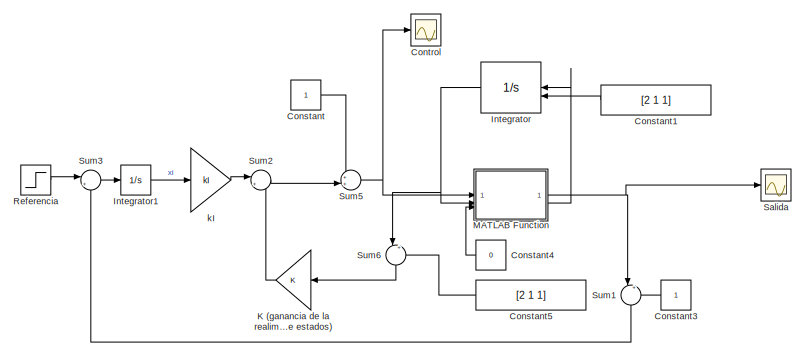
[diagram: root canvas - part 1/2, right side, full height]
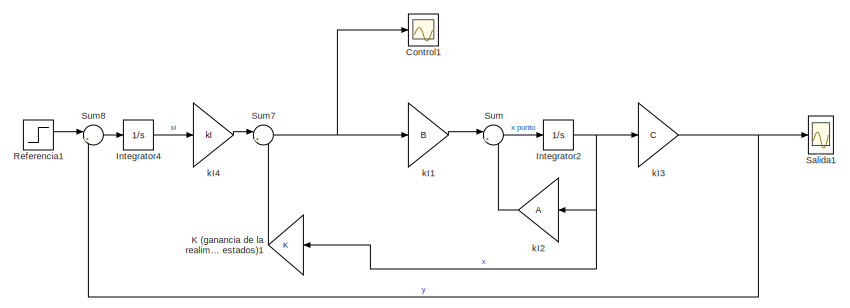
[diagram: root canvas - part 2/2, left side, full height]
MODEL slx_7f7febc3861d
KIND model
CONFIG AbsTol = auto
CONFIG EnableMultiTasking = off
CONFIG FixedStep = auto
CONFIG MaxStep = auto
CONFIG MinStep = auto
CONFIG RelTol = 1e-3
CONFIG SampleTimeConstraint = Unconstrained
CONFIG SolverName = VariableStepAuto
CONFIG StartTime = 0.0
CONFIG StopTime = 1000
BLOCK [Constant] Constant
BLOCK [Constant] Constant1
  Value = [2 1 1]
BLOCK [Constant] Constant3
BLOCK [Constant] Constant4
  Value = 0
BLOCK [Constant] Constant5
  Value = [2 1 1]
BLOCK [Scope] Control
  Floating = off
  NumInputPorts = 1
  ScopeSpecificationString = Simulink.scopes.TimeScopeBlockCfg('CurrentConfiguration', extmgr.ConfigurationSet(extmgr.Configuration('Core','General UI',true),extmgr.Configuration('Core','Source UI',true),extmgr.Configuration('Sources','WiredSimulink',true,'DataLoggingVariableName','ScopeData1'),extmgr.Configuration('Visuals','Time Domain',true,'SerializedDisplays',{struct('MinYLimReal','-11000857495849395001214071558375581238...<+3274ch>
BLOCK [Scope] Control1
  Floating = off
  NumInputPorts = 1
  ScopeSpecificationString = Simulink.scopes.TimeScopeBlockCfg('CurrentConfiguration', extmgr.ConfigurationSet(extmgr.Configuration('Core','General UI',true),extmgr.Configuration('Core','Source UI',true),extmgr.Configuration('Sources','WiredSimulink',true,'DataLoggingVariableName','ScopeData2'),extmgr.Configuration('Visuals','Time Domain',true,'SerializedDisplays',{struct('MinYLimReal','-0.00621','MaxYLimReal','0.05593','YLab...<+1452ch>
BLOCK [Integrator] Integrator
  InitialConditionSource = external
BLOCK [Integrator] Integrator1
BLOCK [Integrator] Integrator2
BLOCK [Integrator] Integrator4
BLOCK [Gain] K (ganancia de la realimentacion de estados)
  Gain = K
  Multiplication = Matrix(K*u)
BLOCK [Gain] K (ganancia de la realimentacion de estados)1
  Gain = K
  Multiplication = Matrix(K*u)
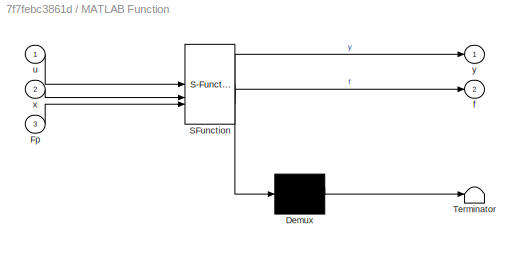
BLOCK [SubSystem] MATLAB Function
  ErrorFcn = Stateflow.Translate.translate
  PermitHierarchicalResolution = ExplicitOnly
  SFBlockType = MATLAB Function
  TreatAsAtomicUnit = on
BLOCK [Demux] MATLAB Function/ Demux 
  Outputs = 1
BLOCK [S-Function] MATLAB Function/ SFunction 
  EnableBusSupport = on
  FunctionName = sf_sfun
  PortCounts = [3 3]
  SFcnIsStateOwnerBlock = off
  SFunctionDeploymentMode = off
  Tag = Stateflow S-Function 2
BLOCK [Terminator] MATLAB Function/ Terminator 
BLOCK [Inport] MATLAB Function/Fp
  Port = 3
BLOCK [Outport] MATLAB Function/f
  Port = 2
BLOCK [Inport] MATLAB Function/u
BLOCK [Inport] MATLAB Function/x
  Port = 2
BLOCK [Outport] MATLAB Function/y
BLOCK [Step] Referencia
  After = 0.1
  SampleTime = 0
BLOCK [Step] Referencia1
  After = 0.1
  SampleTime = 0
BLOCK [Scope] Salida
  Floating = off
  NumInputPorts = 1
  ScopeSpecificationString = Simulink.scopes.TimeScopeBlockCfg('CurrentConfiguration', extmgr.ConfigurationSet(extmgr.Configuration('Core','General UI',true),extmgr.Configuration('Core','Source UI',true),extmgr.Configuration('Sources','WiredSimulink',true),extmgr.Configuration('Visuals','Time Domain',true,'SerializedDisplays',{struct('MinYLimReal','-1413874952895.22632','MaxYLimReal','12724874576057.08203','YLabelReal','','Mi...<+1557ch>
BLOCK [Scope] Salida1
  Floating = off
  NumInputPorts = 1
  ScopeSpecificationString = Simulink.scopes.TimeScopeBlockCfg('CurrentConfiguration', extmgr.ConfigurationSet(extmgr.Configuration('Core','General UI',true),extmgr.Configuration('Core','Source UI',true),extmgr.Configuration('Sources','WiredSimulink',true,'DataLoggingVariableName','ScopeData3'),extmgr.Configuration('Visuals','Time Domain',true,'SerializedDisplays',{struct('MinYLimReal','-0.01237','MaxYLimReal','0.11132','YLab...<+1482ch>
BLOCK [Sum] Sum
  Inputs = |++
BLOCK [Sum] Sum1
  Inputs = |+-
  NameLocation = left
BLOCK [Sum] Sum2
  Inputs = |+-
BLOCK [Sum] Sum3
  Inputs = |+-
BLOCK [Sum] Sum5
  Inputs = ++|
BLOCK [Sum] Sum6
  Inputs = |+-
  NameLocation = left
BLOCK [Sum] Sum7
  Inputs = |+-
BLOCK [Sum] Sum8
  Inputs = |+-
BLOCK [Gain] kI
  Gain = kI
  Multiplication = Matrix(K*u)
BLOCK [Gain] kI1
  Gain = B
  Multiplication = Matrix(K*u)
BLOCK [Gain] kI2
  Gain = A
  Multiplication = Matrix(K*u)
BLOCK [Gain] kI3
  Gain = C
  Multiplication = Matrix(K*u)
BLOCK [Gain] kI4
  Gain = kI
  Multiplication = Matrix(K*u)
LINE Constant1:1 -> Integrator:2
LINE Constant3:1 -> Sum1:2
LINE Constant4:1 -> MATLAB Function:3
LINE Constant5:1 -> Sum6:2
LINE Constant:1 -> Sum5:1
LINE Integrator1:1 -> kI:1
NET Integrator2:1 -> K (ganancia de la realimentacion de estados)1:1, kI2:1, kI3:1
LINE Integrator4:1 -> kI4:1
NET Integrator:1 -> MATLAB Function:2, Sum6:1
LINE K (ganancia de la realimentacion de estados)1:1 -> Sum7:2
LINE K (ganancia de la realimentacion de estados):1 -> Sum2:2
NET MATLAB Function:1 -> Salida:1, Sum1:1
LINE MATLAB Function:2 -> Integrator:1
LINE Referencia1:1 -> Sum8:1
LINE Referencia:1 -> Sum3:1
LINE Sum1:1 -> Sum3:2
LINE Sum2:1 -> Sum5:2
LINE Sum3:1 -> Integrator1:1
NET Sum5:1 -> Control:1, MATLAB Function:1
LINE Sum6:1 -> K (ganancia de la realimentacion de estados):1
NET Sum7:1 -> Control1:1, kI1:1
LINE Sum8:1 -> Integrator4:1
LINE Sum:1 -> Integrator2:1
LINE kI1:1 -> Sum:1
LINE kI2:1 -> Sum:2
NET kI3:1 -> Salida1:1, Sum8:2
LINE kI4:1 -> Sum7:1
LINE kI:1 -> Sum2:1
note: NET lines group one-source signal fan-out (src -> all destinations, sorted); 1:1 wires keep LINE
CHART MATLAB Function states=1 transitions=1
  STATE_LABEL 'eML_blk_kernel()'
  STATE_LABEL 'SCRIPT:\nfunction [y,f] = fcn(u, x, Fp)\n    %Constantes\n    p = 0.02;\n    \n    %Ecuaciones no lineales\n    F1 = ( x(3) - sqrt(abs(x(1)-x(2))) )/power(x(1), 2);\n    F2 = ( sqrt(abs(x(1)-x(2))) - sqrt(abs(x(2))) + Fp )/power(x(2), 2);\n    F3 = p*u-p*x(3);\n    \n    y = x(2);\n    f = [F1 F2 F3];\n'
CHART  states=0 transitions=0
